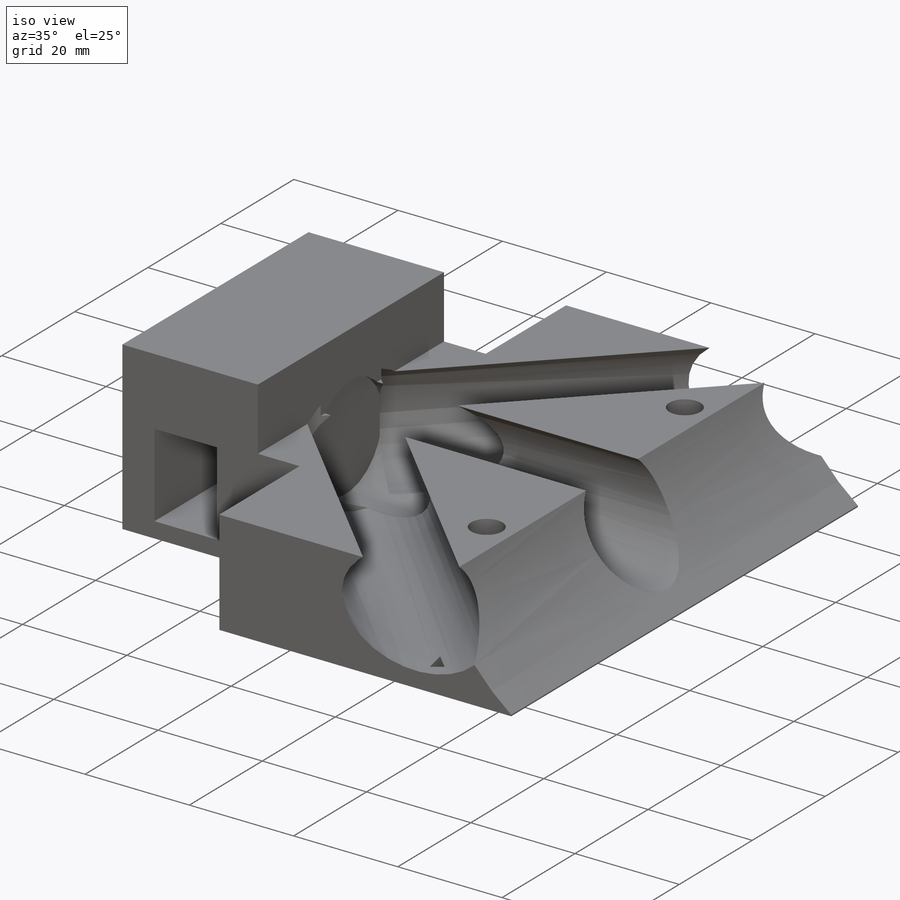
[diagram: iso view]
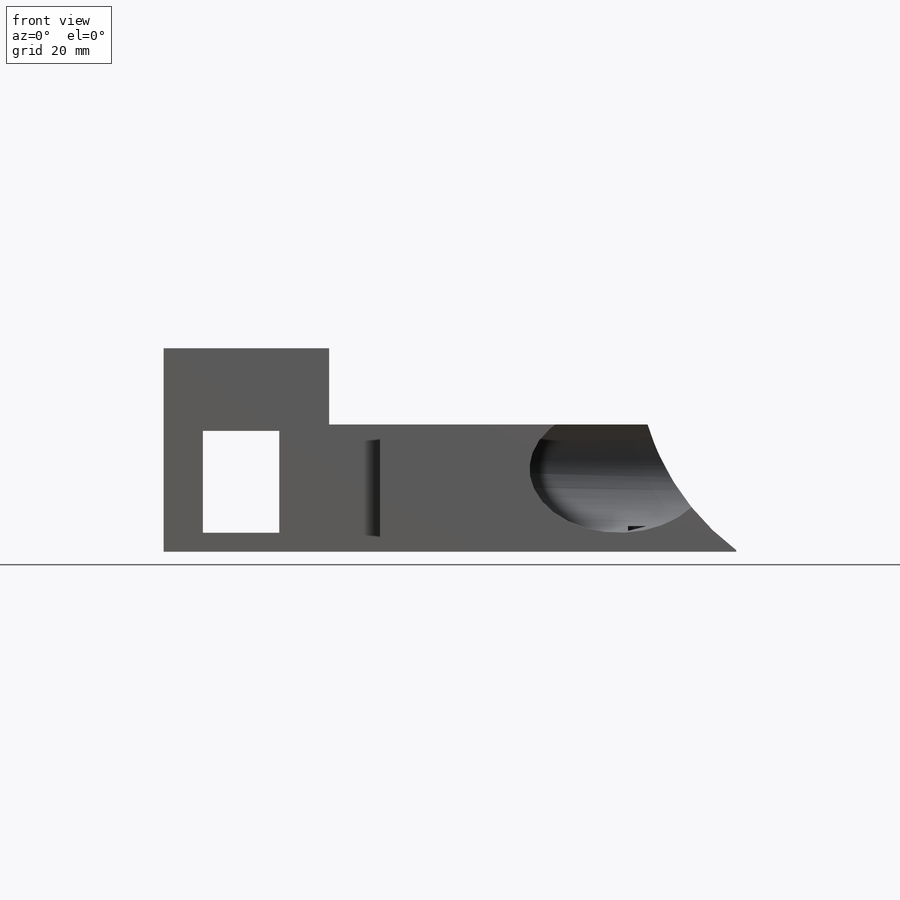
[diagram: front view]
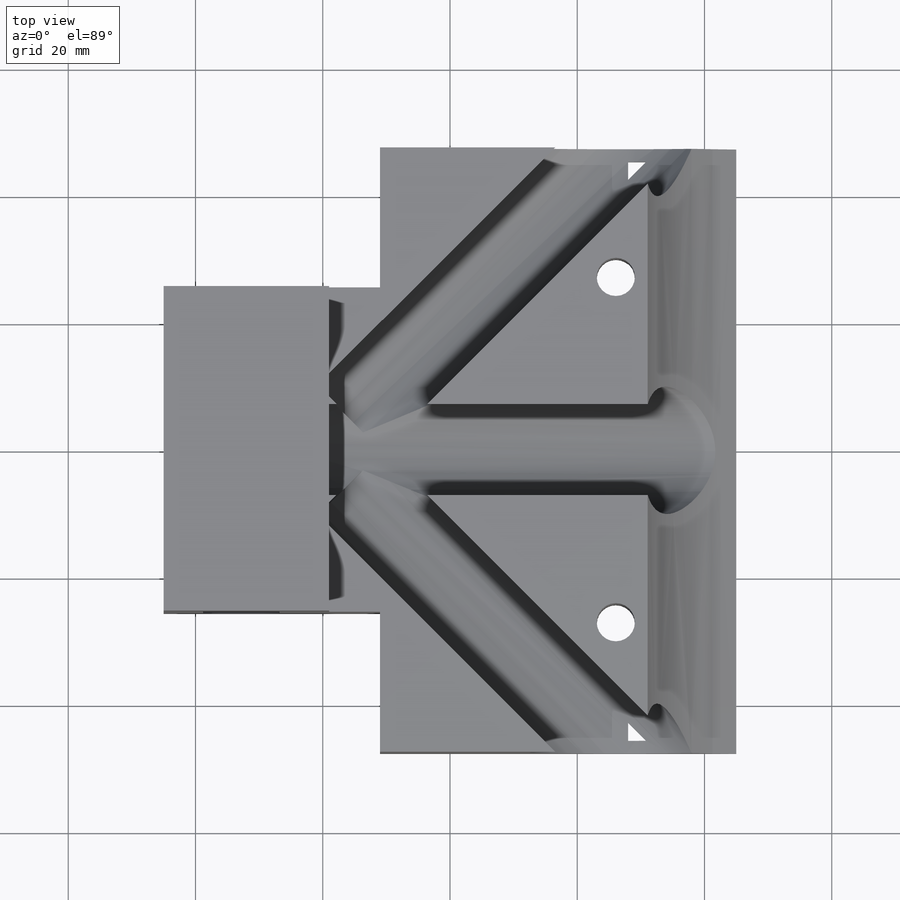
[diagram: top view]
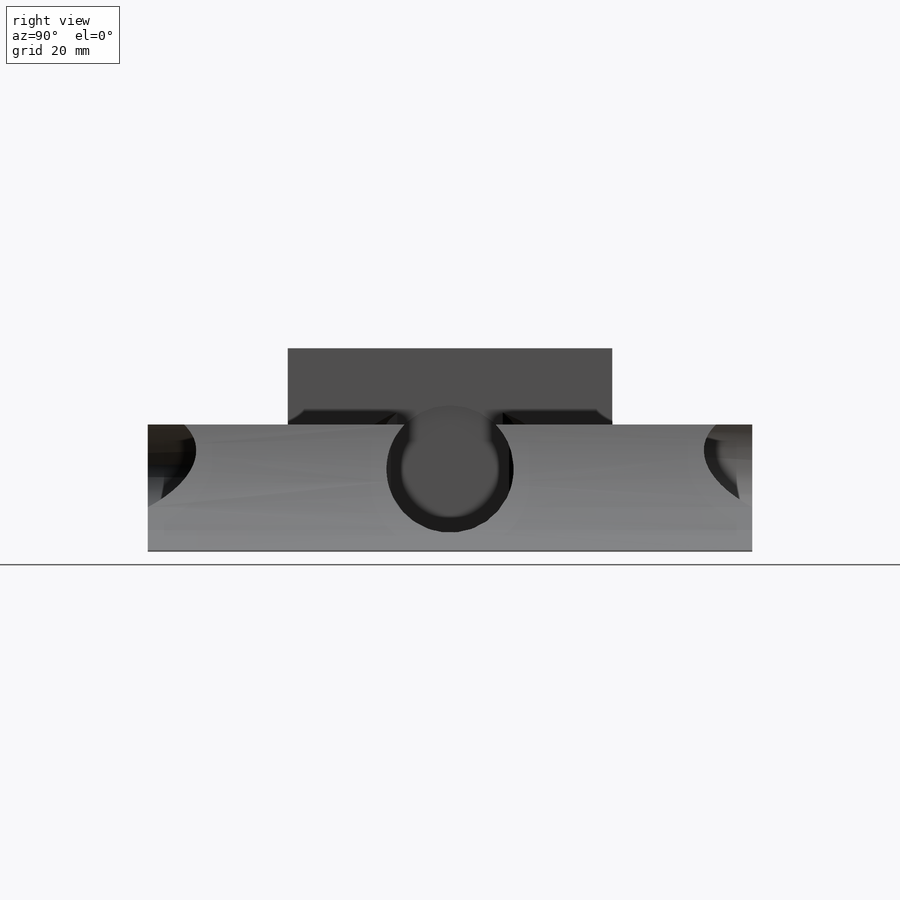
[diagram: right view]
SOLIDWORKS PART (.sldprt)
format: sldprt  version: not decoded by parser v0  size: 631,808 bytes
history: native  units: mm
features: sketch x33, cut_extrude x24, extrude x9, material x1, fillet x1 (+12 scaffold rows collapsed)
feature tree (80):
  scaffold x12  (default folders/planes/origin — collapsed)
  material  "Material <not specified>"
  sketch  "Sketch1"  dims[D1=95.0mm D2=90.0mm]
  extrude  "Boss-Extrude1"  Depth=20mm
  sketch  "Sketch2"  dims[D1=13.0mm D2=47.5mm]
  cut_extrude  "Cut-Extrude2"  Depth=70mm
  sketch  "Sketch3"
  cut_extrude  "Cut-Extrude3"  Depth=100mm
  sketch  "Sketch5"  dims[D1=12.0mm D2=3.0mm D3=16.0mm]
  cut_extrude  "Cut-Extrude5"  Depth=100mm
  fillet  "Fillet2"  Radius=10mm
  sketch  "Sketch6"  dims[D1=24.0mm]
  extrude  "Boss-Extrude2"  Depth=24mm
  sketch  "Sketch7"  dims[D1=2.0mm D2=4.36mm D3=2.0mm D4=2.0mm D5=~33.998572mm]
  cut_extrude  "Cut-Extrude7"  Depth=17mm
  sketch  "Sketch8"  dims[D1=2.0mm D2=34.0mm D3=2.0mm D4=2.0mm]
  cut_extrude  "Cut-Extrude8"  Depth=17mm
  sketch  "Sketch10"
  extrude  "Boss-Extrude3"  Depth=25mm
  sketch  "Sketch12"  dims[D1=32.0mm D2=22.0mm]
  cut_extrude  "Cut-Extrude9"  Depth=34mm
  sketch  "Sketch13"  dims[D1=22.0mm D2=32.0mm]
  cut_extrude  "Cut-Extrude10"  Depth=34mm
  sketch  "Sketch14"  dims[D1=12.0mm]
  cut_extrude  "Cut-Extrude11"  Depth=100mm
  sketch  "Sketch18"  dims[D1=6.0mm]
  cut_extrude  "Cut-Extrude13"  Depth=100mm
  sketch  "Sketch19"  dims[D1=0.0mm]
  extrude  "Boss-Extrude5"  Depth=60mm
  sketch  "Sketch20"
  extrude  "Boss-Extrude6"  Depth=95mm
  sketch  "Sketch21"
  cut_extrude  "Cut-Extrude16"  Depth=17mm
  sketch  "Sketch23"
  cut_extrude  "Cut-Extrude17"  Depth=100mm
  sketch  "Sketch29"
  cut_extrude  "Cut-Extrude22"  Depth=100mm
  sketch  "Sketch30"
  cut_extrude  "Cut-Extrude23"  Depth=100mm
  sketch  "Sketch31"
  cut_extrude  "Cut-Extrude24"  Depth=17mm
  sketch  "Sketch33"
  extrude  "Boss-Extrude7"  Depth=17mm
  sketch  "Sketch34"
  extrude  "Boss-Extrude8"  Depth=17mm
  sketch  "Sketch35"  dims[D1=17.0mm D2=17.0mm]
  extrude  "Boss-Extrude10"  Depth=20mm
  sketch  "Sketch36"  dims[D1=17.0mm D2=17.0mm]
  extrude  "Boss-Extrude13"  Depth=20mm
  sketch  "Sketch43"  dims[D1=13.0mm D2=25.0mm]
  cut_extrude  "Cut-Extrude35"  Depth=85mm
  sketch  "Sketch44"  dims[D1=13.0mm D2=25.0mm]
  cut_extrude  "Cut-Extrude36"  Depth=85mm
  sketch  "Sketch45"
  cut_extrude  "Cut-Extrude37"  Depth=85mm
  sketch  "Sketch46"
  cut_extrude  "Cut-Extrude38"  Depth=85mm
  sketch  "Sketch48"  dims[D1=13.0mm D2=47.5mm]
  cut_extrude  "Cut-Extrude40"  Depth=65mm
  sketch  "Sketch49"
  cut_extrude  "Cut-Extrude41"  Depth=100mm
  sketch  "Sketch50"  dims[D1=17.0mm D2=10.0mm D3=2.0mm D4=7.0mm]
  cut_extrude  "Cut-Extrude43"  Depth=4mm
  sketch  "Sketch51"  dims[D1=17.0mm D2=10.0mm D3=7.0mm D4=2.0mm]
  cut_extrude  "Cut-Extrude44"  Depth=4mm
  sketch  "Sketch52"  dims[D1=20.0mm D2=5.0mm]
  cut_extrude  "Cut-Extrude45"  Depth=100mm
  sketch  "Sketch53"  dims[D1=20.0mm D2=5.0mm]
  cut_extrude  "Cut-Extrude46"  Depth=100mm
decode coverage: 54 of 67 modeling features carry decoded parameters
note: ~ marks probable driven/reference dimensions
note: suppression state not decoded; provenance and decode notes live in map.json
